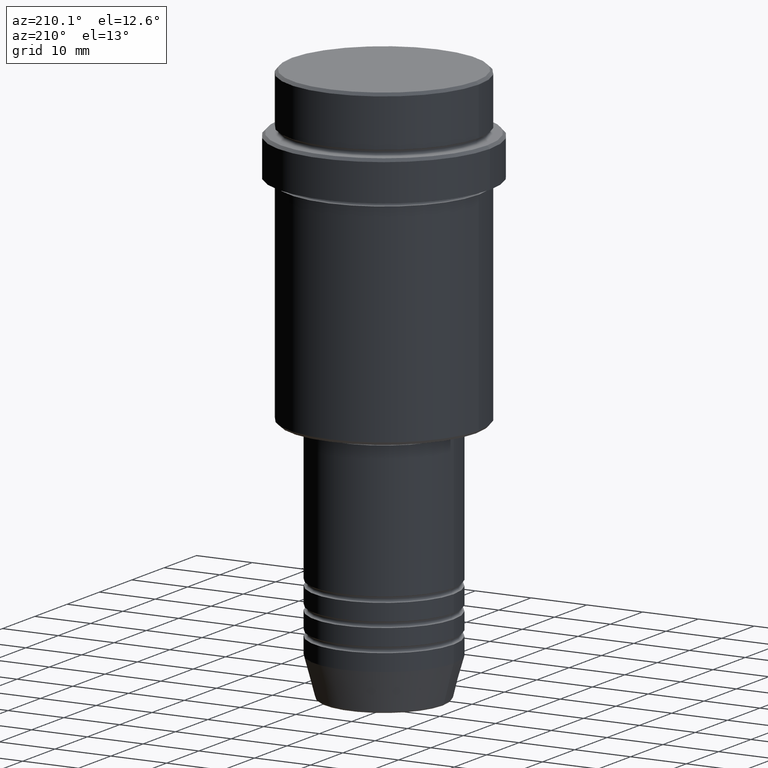
[diagram: clean part render]
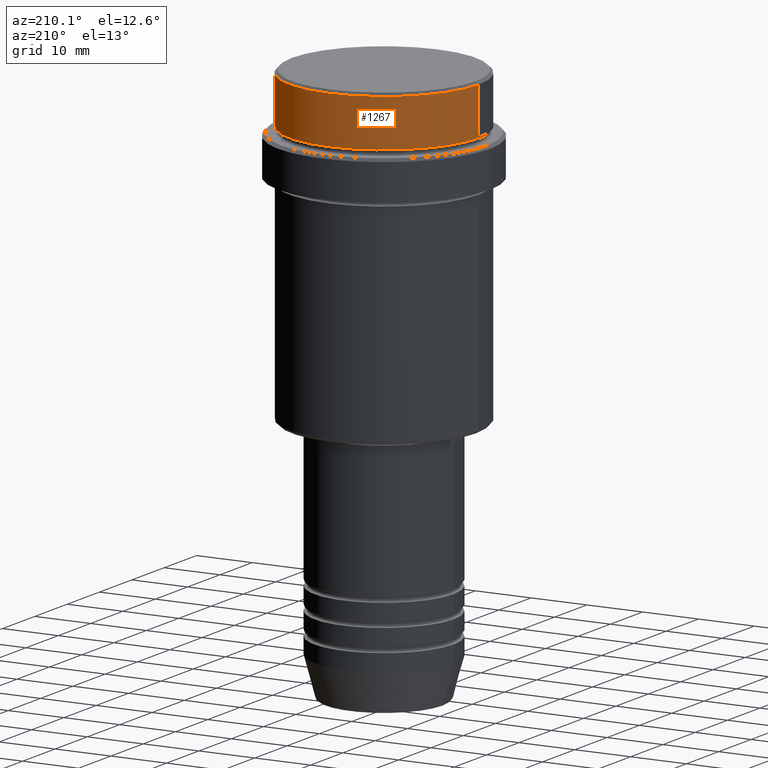
[diagram: same view with one face highlighted and labeled with its STEP entity id]
A machine part, auxiliary view. The second image highlights one B-rep face of the part: STEP entity #1267.
In plain terms, the highlighted cylindrical surface (partial cylindrical patch) has radius 17 mm, axis along (-0, -0, 1).
Its self-contained STEP definition (entity closure, byte-faithful):
#10 = ORIENTED_EDGE ( 'NONE', *, *, #30, .T. ) ;
#27 = VERTEX_POINT ( 'NONE', #712 ) ;
#30 = EDGE_CURVE ( 'NONE', #1335, #273, #456, .T. ) ;
#75 = DIRECTION ( 'NONE',  ( 0.000000000000000000, 0.000000000000000000, -1.000000000000000000 ) ) ;
#95 = CARTESIAN_POINT ( 'NONE',  ( 16.99999999999999645, 0.000000000000000000, -0.5000000000000073275 ) ) ;
#140 = LINE ( 'NONE', #879, #833 ) ;
#215 = DIRECTION ( 'NONE',  ( -0.000000000000000000, -0.000000000000000000, 1.000000000000000000 ) ) ;
#273 = VERTEX_POINT ( 'NONE', #95 ) ;
#278 = EDGE_CURVE ( 'NONE', #27, #1335, #420, .T. ) ;
#289 = AXIS2_PLACEMENT_3D ( 'NONE', #555, #885, #674 ) ;
#420 = LINE ( 'NONE', #745, #793 ) ;
#456 = CIRCLE ( 'NONE', #613, 16.99999999999999645 ) ;
#501 = AXIS2_PLACEMENT_3D ( 'NONE', #620, #1406, #865 ) ;
#502 = CARTESIAN_POINT ( 'NONE',  ( 0.000000000000000000, 0.000000000000000000, -0.5000000000000073275 ) ) ;
#513 = DIRECTION ( 'NONE',  ( 1.000000000000000000, 0.000000000000000000, 0.000000000000000000 ) ) ;
#555 = CARTESIAN_POINT ( 'NONE',  ( 0.000000000000000000, 0.000000000000000000, 0.000000000000000000 ) ) ;
#577 = DIRECTION ( 'NONE',  ( -0.000000000000000000, -0.000000000000000000, 1.000000000000000000 ) ) ;
#613 = AXIS2_PLACEMENT_3D ( 'NONE', #502, #75, #513 ) ;
#620 = CARTESIAN_POINT ( 'NONE',  ( 0.000000000000000000, 0.000000000000000000, -8.999999999999998224 ) ) ;
#650 = VERTEX_POINT ( 'NONE', #900 ) ;
#674 = DIRECTION ( 'NONE',  ( 1.000000000000000000, 0.000000000000000000, 0.000000000000000000 ) ) ;
#712 = CARTESIAN_POINT ( 'NONE',  ( -16.99999999999999289, 2.081899558550499885E-15, -8.999999999999998224 ) ) ;
#745 = CARTESIAN_POINT ( 'NONE',  ( -16.99999999999999645, 2.081899558550499885E-15, 0.000000000000000000 ) ) ;
#793 = VECTOR ( 'NONE', #215, 1000.000000000000000 ) ;
#833 = VECTOR ( 'NONE', #577, 1000.000000000000000 ) ;
#865 = DIRECTION ( 'NONE',  ( 1.000000000000000000, 0.000000000000000000, 0.000000000000000000 ) ) ;
#879 = CARTESIAN_POINT ( 'NONE',  ( 16.99999999999999645, 0.000000000000000000, 0.000000000000000000 ) ) ;
#885 = DIRECTION ( 'NONE',  ( -0.000000000000000000, -0.000000000000000000, 1.000000000000000000 ) ) ;
#900 = CARTESIAN_POINT ( 'NONE',  ( 16.99999999999999289, 0.000000000000000000, -8.999999999999998224 ) ) ;
#968 = ORIENTED_EDGE ( 'NONE', *, *, #1345, .F. ) ;
#985 = FACE_OUTER_BOUND ( 'NONE', #1414, .T. ) ;
#1115 = CYLINDRICAL_SURFACE ( 'NONE', #289, 16.99999999999999645 ) ;
#1116 = CIRCLE ( 'NONE', #501, 16.99999999999999289 ) ;
#1122 = ORIENTED_EDGE ( 'NONE', *, *, #1124, .T. ) ;
#1124 = EDGE_CURVE ( 'NONE', #650, #27, #1116, .T. ) ;
#1170 = ORIENTED_EDGE ( 'NONE', *, *, #278, .T. ) ;
#1267 = ADVANCED_FACE ( 'NONE', ( #985 ), #1115, .T. ) ;
#1326 = CARTESIAN_POINT ( 'NONE',  ( -16.99999999999999645, 2.081899558550499885E-15, -0.5000000000000073275 ) ) ;
#1335 = VERTEX_POINT ( 'NONE', #1326 ) ;
#1345 = EDGE_CURVE ( 'NONE', #650, #273, #140, .T. ) ;
#1406 = DIRECTION ( 'NONE',  ( -0.000000000000000000, -0.000000000000000000, 1.000000000000000000 ) ) ;
#1414 = EDGE_LOOP ( 'NONE', ( #1122, #1170, #10, #968 ) ) ;